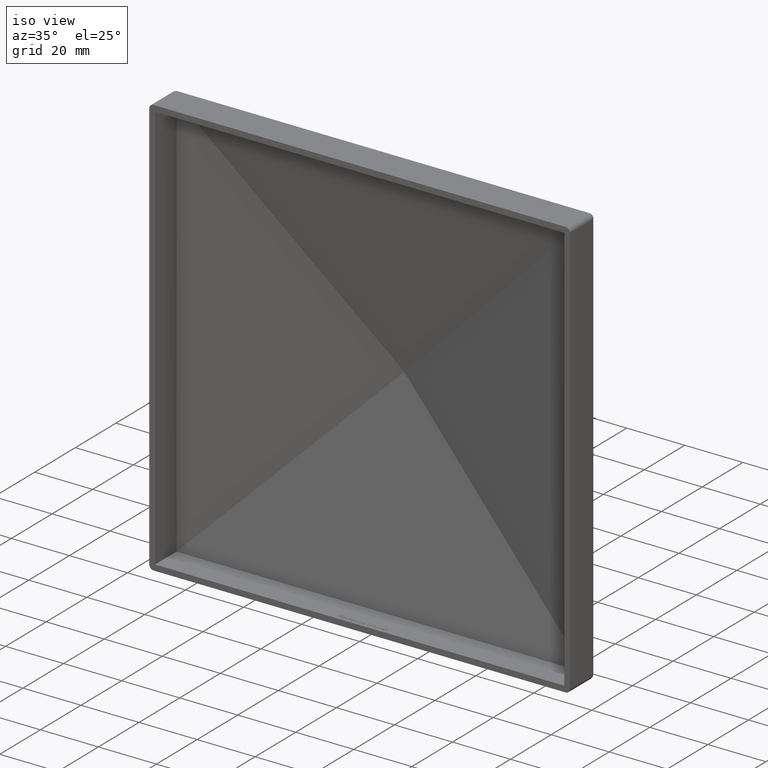
[diagram: clean part render]
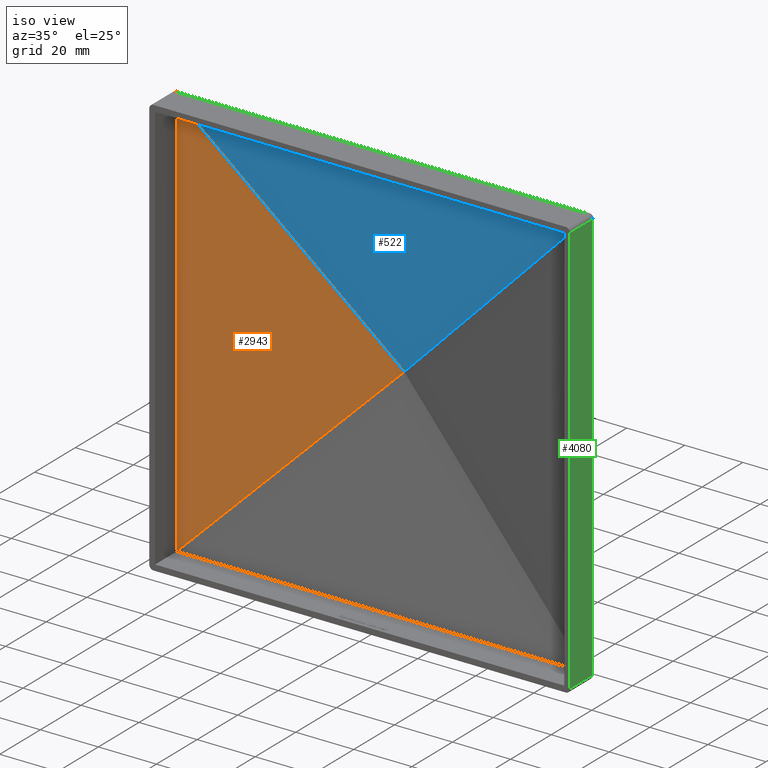
[diagram: same view with three faces highlighted in distinct colors, each labeled with its STEP entity id]
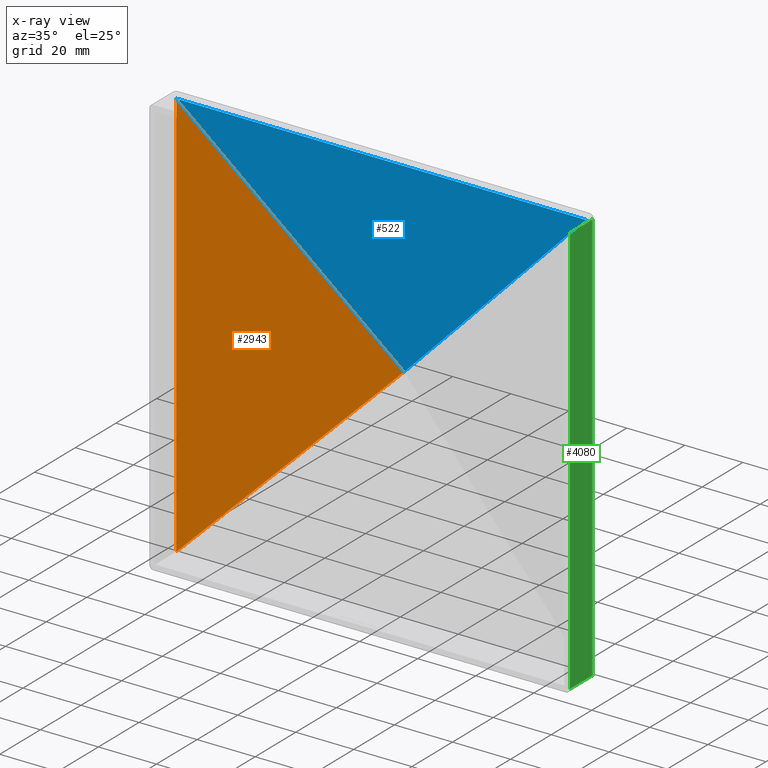
[diagram: x-ray of the same camera — body ghosted, the three highlighted faces saturated]
A machine part, iso view with three faces highlighted in distinct colors.
The next image is the same camera in x-ray (body ghosted, the three faces saturated) — at least one of them is partly hidden behind the body in this view.
Their STEP definitions:

[orange] entity #2943 — the highlighted planar face has unit normal (-0.1599, 0.9871, 0).
#785 = CARTESIAN_POINT ( 'NONE',  ( -70.50000000000000000, 10.57446965858876600, -70.49999999999998600 ) ) ;
#957 = ORIENTED_EDGE ( 'NONE', *, *, #5208, .T. ) ;
#990 = VERTEX_POINT ( 'NONE', #4538 ) ;
#1713 = FACE_OUTER_BOUND ( 'NONE', #5345, .T. ) ;
#2010 = DIRECTION ( 'NONE',  ( -0.7025141999565299700, -0.1137875112605648000, -0.7025141999565298600 ) ) ;
#2063 = CARTESIAN_POINT ( 'NONE',  ( -3.471256845549266100, 21.43123791599980500, -72.49999999999998600 ) ) ;
#2074 = VECTOR ( 'NONE', #8564, 1000.000000000000100 ) ;
#2402 = LINE ( 'NONE', #7716, #4085 ) ;
#2724 = DIRECTION ( 'NONE',  ( 1.914177628664063100E-016, 3.100428553469963200E-017, 1.000000000000000000 ) ) ;
#2943 = ADVANCED_FACE ( 'NONE', ( #1713 ), #7855, .F. ) ;
#2946 = CARTESIAN_POINT ( 'NONE',  ( -70.49999999999998600, 10.57446965858876800, 70.50000000000000000 ) ) ;
#2990 = VERTEX_POINT ( 'NONE', #785 ) ;
#3197 = VERTEX_POINT ( 'NONE', #2946 ) ;
#3606 = CARTESIAN_POINT ( 'NONE',  ( 34.02254894130867800, 27.50417828992750200, -34.02254894130868500 ) ) ;
#3751 = DIRECTION ( 'NONE',  ( -0.1598880872806348900, 0.9871351475587019100, 0.0000000000000000000 ) ) ;
#4085 = VECTOR ( 'NONE', #2010, 1000.000000000000100 ) ;
#4317 = CARTESIAN_POINT ( 'NONE',  ( -70.50000000000000000, 10.57446965858876500, -72.49999999999998600 ) ) ;
#4461 = AXIS2_PLACEMENT_3D ( 'NONE', #2063, #3751, #6353 ) ;
#4538 = CARTESIAN_POINT ( 'NONE',  ( 3.469446951953614200E-015, 21.99348374309581500, -3.469446951953614200E-015 ) ) ;
#5208 = EDGE_CURVE ( 'NONE', #990, #3197, #9953, .T. ) ;
#5345 = EDGE_LOOP ( 'NONE', ( #957, #7335, #9914 ) ) ;
#6353 = DIRECTION ( 'NONE',  ( -0.9871351475587019100, -0.1598880872806348900, 0.0000000000000000000 ) ) ;
#6659 = LINE ( 'NONE', #4317, #7930 ) ;
#6771 = EDGE_CURVE ( 'NONE', #990, #2990, #2402, .T. ) ;
#7335 = ORIENTED_EDGE ( 'NONE', *, *, #8451, .F. ) ;
#7716 = CARTESIAN_POINT ( 'NONE',  ( -37.53875022407300600, 15.91326363637976200, -37.53875022407298400 ) ) ;
#7855 = PLANE ( 'NONE',  #4461 ) ;
#7930 = VECTOR ( 'NONE', #2724, 1000.000000000000000 ) ;
#8451 = EDGE_CURVE ( 'NONE', #2990, #3197, #6659, .T. ) ;
#8564 = DIRECTION ( 'NONE',  ( -0.7025141999565298600, -0.1137875112605647600, 0.7025141999565300800 ) ) ;
#9914 = ORIENTED_EDGE ( 'NONE', *, *, #6771, .F. ) ;
#9953 = LINE ( 'NONE', #3606, #2074 ) ;

[blue] entity #522 — the highlighted planar face has unit normal (-0, -0.9871, -0.1599).
#440 = ORIENTED_EDGE ( 'NONE', *, *, #3775, .T. ) ;
#522 = ADVANCED_FACE ( 'NONE', ( #3361 ), #7951, .T. ) ;
#990 = VERTEX_POINT ( 'NONE', #4538 ) ;
#1146 = DIRECTION ( 'NONE',  ( -1.000000000000000000, 3.596497122025157000E-017, 0.0000000000000000000 ) ) ;
#2074 = VECTOR ( 'NONE', #8564, 1000.000000000000100 ) ;
#2707 = CARTESIAN_POINT ( 'NONE',  ( -34.02254894130867100, 27.50417828992750200, -34.02254894130867800 ) ) ;
#2946 = CARTESIAN_POINT ( 'NONE',  ( -70.49999999999998600, 10.57446965858876800, 70.50000000000000000 ) ) ;
#3197 = VERTEX_POINT ( 'NONE', #2946 ) ;
#3202 = EDGE_CURVE ( 'NONE', #8648, #3197, #7613, .T. ) ;
#3271 = CARTESIAN_POINT ( 'NONE',  ( 70.50000000000000000, 10.57446965858876300, 70.50000000000000000 ) ) ;
#3295 = ORIENTED_EDGE ( 'NONE', *, *, #5208, .F. ) ;
#3361 = FACE_OUTER_BOUND ( 'NONE', #3646, .T. ) ;
#3606 = CARTESIAN_POINT ( 'NONE',  ( 34.02254894130867800, 27.50417828992750200, -34.02254894130868500 ) ) ;
#3646 = EDGE_LOOP ( 'NONE', ( #3295, #440, #9222 ) ) ;
#3775 = EDGE_CURVE ( 'NONE', #990, #8648, #8666, .T. ) ;
#4521 = CARTESIAN_POINT ( 'NONE',  ( -72.49999999999998600, 10.57446965858876800, 70.50000000000000000 ) ) ;
#4538 = CARTESIAN_POINT ( 'NONE',  ( 3.469446951953614200E-015, 21.99348374309581500, -3.469446951953614200E-015 ) ) ;
#4673 = DIRECTION ( 'NONE',  ( -3.550228717244749700E-017, -0.9871351475587019100, -0.1598880872806348900 ) ) ;
#5208 = EDGE_CURVE ( 'NONE', #990, #3197, #9953, .T. ) ;
#5213 = VECTOR ( 'NONE', #1146, 1000.000000000000000 ) ;
#6911 = AXIS2_PLACEMENT_3D ( 'NONE', #8716, #4673, #9494 ) ;
#6969 = DIRECTION ( 'NONE',  ( 0.7025141999565299700, -0.1137875112605648000, 0.7025141999565298600 ) ) ;
#7613 = LINE ( 'NONE', #4521, #5213 ) ;
#7951 = PLANE ( 'NONE',  #6911 ) ;
#8564 = DIRECTION ( 'NONE',  ( -0.7025141999565298600, -0.1137875112605647600, 0.7025141999565300800 ) ) ;
#8648 = VERTEX_POINT ( 'NONE', #3271 ) ;
#8666 = LINE ( 'NONE', #2707, #10488 ) ;
#8716 = CARTESIAN_POINT ( 'NONE',  ( 72.50000000000002800, 21.43123791599980500, 3.471256845549249600 ) ) ;
#9222 = ORIENTED_EDGE ( 'NONE', *, *, #3202, .T. ) ;
#9494 = DIRECTION ( 'NONE',  ( 0.0000000000000000000, 0.1598880872806348900, -0.9871351475587019100 ) ) ;
#9953 = LINE ( 'NONE', #3606, #2074 ) ;
#10488 = VECTOR ( 'NONE', #6969, 1000.000000000000100 ) ;

[green] entity #4080 — the highlighted planar face has unit normal (-1, 0, 0).
#141 = VECTOR ( 'NONE', #6096, 1000.000000000000000 ) ;
#638 = LINE ( 'NONE', #1780, #9895 ) ;
#695 = ORIENTED_EDGE ( 'NONE', *, *, #6216, .T. ) ;
#1069 = LINE ( 'NONE', #9658, #6608 ) ;
#1640 = CARTESIAN_POINT ( 'NONE',  ( 72.50000000000000000, 24.00000000000000000, -72.49999999999998600 ) ) ;
#1780 = CARTESIAN_POINT ( 'NONE',  ( 72.50000000000000000, 0.0000000000000000000, -72.49999999999998600 ) ) ;
#1868 = ORIENTED_EDGE ( 'NONE', *, *, #4041, .T. ) ;
#2050 = CARTESIAN_POINT ( 'NONE',  ( 72.50000000000001400, 11.00000000000000000, 71.00000000000001400 ) ) ;
#2181 = CARTESIAN_POINT ( 'NONE',  ( 72.50000000000001400, 0.0000000000000000000, 71.00000000000001400 ) ) ;
#3282 = VECTOR ( 'NONE', #3931, 1000.000000000000000 ) ;
#3326 = DIRECTION ( 'NONE',  ( -1.000000000000000000, 0.0000000000000000000, 9.570888143320315600E-017 ) ) ;
#3547 = ORIENTED_EDGE ( 'NONE', *, *, #7785, .T. ) ;
#3931 = DIRECTION ( 'NONE',  ( 0.0000000000000000000, -1.000000000000000000, 0.0000000000000000000 ) ) ;
#4041 = EDGE_CURVE ( 'NONE', #5359, #9331, #638, .T. ) ;
#4080 = ADVANCED_FACE ( 'NONE', ( #7970 ), #8267, .F. ) ;
#4119 = CARTESIAN_POINT ( 'NONE',  ( 72.50000000000001400, 11.00000000000000000, -70.99999999999998600 ) ) ;
#4273 = VERTEX_POINT ( 'NONE', #2050 ) ;
#4456 = AXIS2_PLACEMENT_3D ( 'NONE', #1640, #3326, #7393 ) ;
#5359 = VERTEX_POINT ( 'NONE', #2181 ) ;
#5417 = EDGE_CURVE ( 'NONE', #4273, #5359, #7618, .T. ) ;
#6096 = DIRECTION ( 'NONE',  ( -0.0000000000000000000, -0.0000000000000000000, 1.000000000000000000 ) ) ;
#6216 = EDGE_CURVE ( 'NONE', #7619, #4273, #10455, .T. ) ;
#6608 = VECTOR ( 'NONE', #8809, 1000.000000000000000 ) ;
#6802 = ORIENTED_EDGE ( 'NONE', *, *, #5417, .T. ) ;
#6877 = CARTESIAN_POINT ( 'NONE',  ( 72.50000000000001400, 11.00000000000000000, -72.49999999999998600 ) ) ;
#7291 = CARTESIAN_POINT ( 'NONE',  ( 72.50000000000001400, 24.00000000000000000, 71.00000000000001400 ) ) ;
#7393 = DIRECTION ( 'NONE',  ( 9.570888143320315600E-017, 0.0000000000000000000, 1.000000000000000000 ) ) ;
#7618 = LINE ( 'NONE', #7291, #3282 ) ;
#7619 = VERTEX_POINT ( 'NONE', #4119 ) ;
#7785 = EDGE_CURVE ( 'NONE', #9331, #7619, #1069, .T. ) ;
#7970 = FACE_OUTER_BOUND ( 'NONE', #9859, .T. ) ;
#8267 = PLANE ( 'NONE',  #4456 ) ;
#8809 = DIRECTION ( 'NONE',  ( -0.0000000000000000000, 1.000000000000000000, -0.0000000000000000000 ) ) ;
#9331 = VERTEX_POINT ( 'NONE', #9432 ) ;
#9432 = CARTESIAN_POINT ( 'NONE',  ( 72.50000000000000000, 0.0000000000000000000, -70.99999999999998600 ) ) ;
#9658 = CARTESIAN_POINT ( 'NONE',  ( 72.50000000000000000, 24.00000000000000000, -70.99999999999998600 ) ) ;
#9859 = EDGE_LOOP ( 'NONE', ( #1868, #3547, #695, #6802 ) ) ;
#9895 = VECTOR ( 'NONE', #9944, 1000.000000000000000 ) ;
#9944 = DIRECTION ( 'NONE',  ( -9.570888143320315600E-017, -0.0000000000000000000, -1.000000000000000000 ) ) ;
#10455 = LINE ( 'NONE', #6877, #141 ) ;